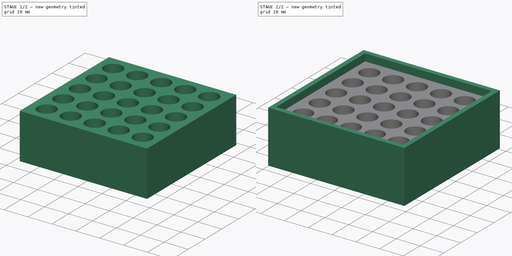
[diagram: build sequence overview — one tinted view per stage of 2, left to right]
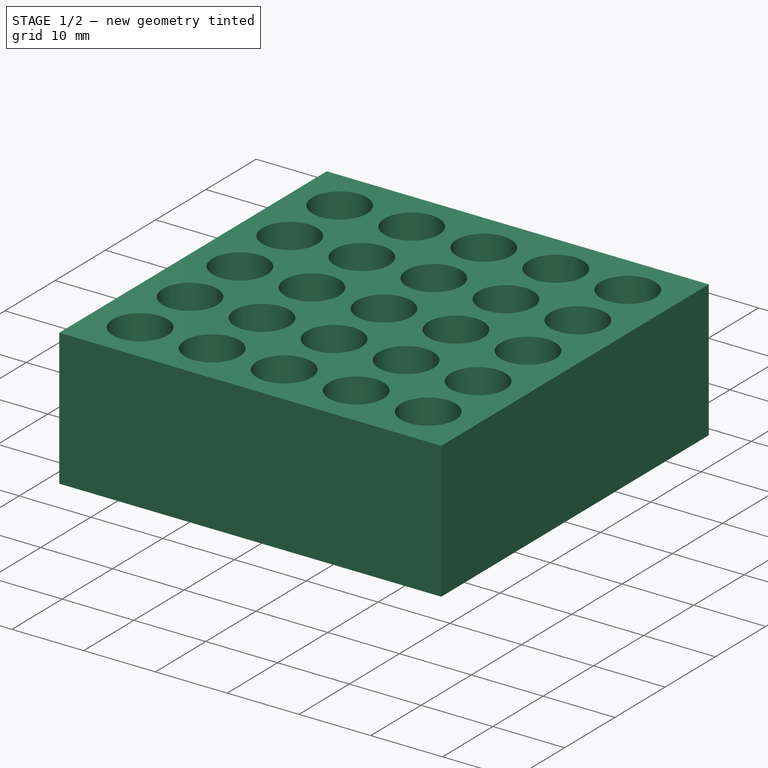
[diagram: stage 1 of 2 — iso view after this stage's code; geometry added in this stage tinted green]
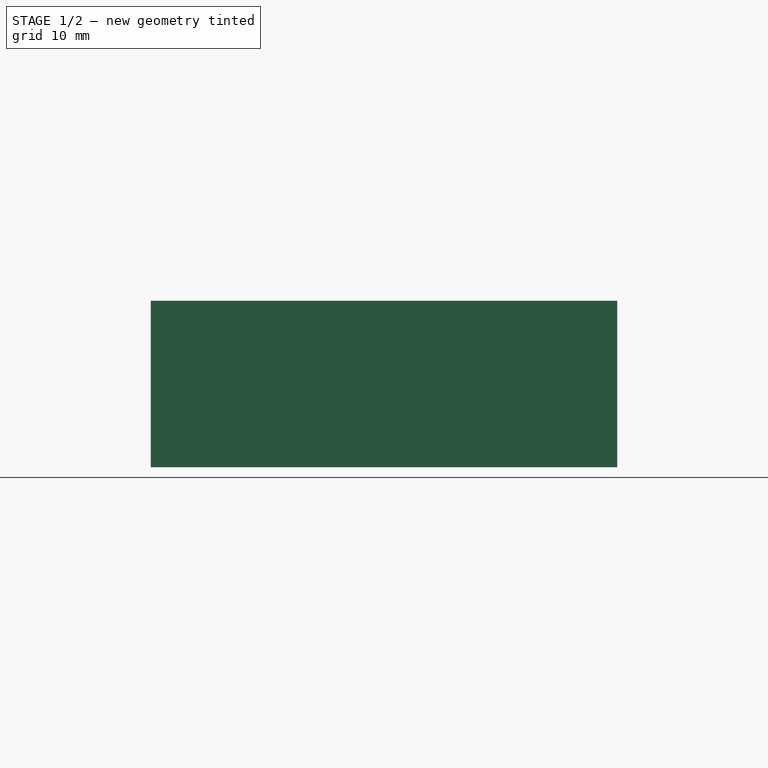
[diagram: stage 1 of 2 — front view after this stage's code; geometry added in this stage tinted green]
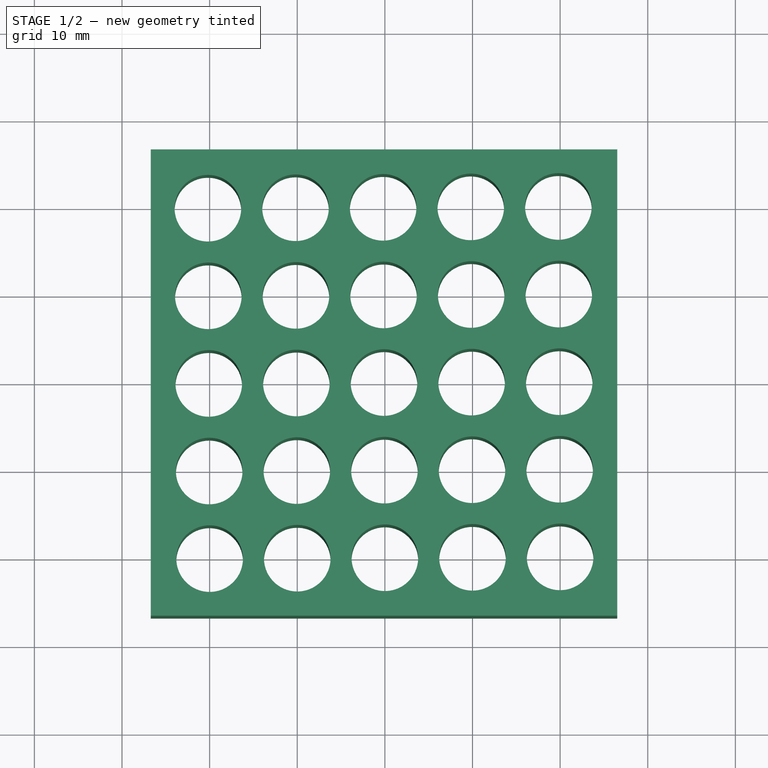
[diagram: stage 1 of 2 — top view after this stage's code; geometry added in this stage tinted green]
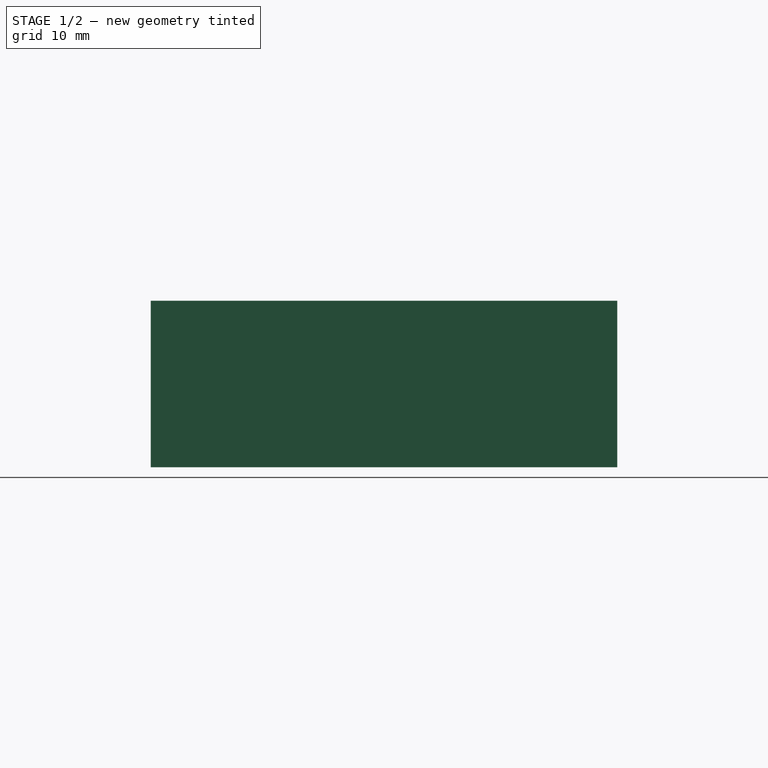
[diagram: stage 1 of 2 — right view after this stage's code; geometry added in this stage tinted green]
FCSTD DOCUMENT  (FreeCAD 0.20R29603 (Git))
Label: pill capsule filler base
License: All rights reserved
LicenseURL: http://en.wikipedia.org/wiki/All_rights_reserved
objects: Sketcher::SketchObject×3, PartDesign::Pad×2, PartDesign::Pocket×1, PartDesign::Body×1
note: 10 computed .brp shape members not serialized (recipe doc carries the construction recipe); baked Part::Feature solids carry a one-line shape summary decoded from their .brp

FEATURE [Sketcher::SketchObject] Sketch
  FullyConstrained = false
  MapMode = 5
  Support = -> [XY_Plane]
  sketch-geometry (5):
    g0: LineSegment StartX=-46.7159 StartY=46.5167 StartZ=0 EndX=-46.7159 EndY=-6.71642 EndZ=0
    g1: LineSegment StartX=-46.7159 StartY=-6.71642 StartZ=0 EndX=6.51716 EndY=-6.71642 EndZ=0
    g2: LineSegment StartX=6.51716 StartY=-6.71642 StartZ=0 EndX=6.51716 EndY=46.5167 EndZ=0
    g3: LineSegment StartX=6.51716 StartY=46.5167 StartZ=0 EndX=-46.7159 EndY=46.5167 EndZ=0
    g4: GeomPoint X=-20.0994 Y=19.9001 Z=0
  constraints (10):
    c: Coincident(g0,g1)
    c: Coincident(g1,g2)
    c: Coincident(g2,g3)
    c: Coincident(g3,g0)
    c: Horizontal(g1)
    c: Horizontal(g3)
    c: Vertical(g0)
    c: Vertical(g2)
    c: Symmetric(g1,g0,g4)
    c: Equal(g2,g3)
FEATURE [PartDesign::Pad] Pad
  Direction = (0,0,1)
  Length = 19
  Length2 = 10
  Profile = -> Sketch
  ReferenceAxis = -> Sketch [N_Axis]
  Type = 0
FEATURE [Sketcher::SketchObject] Sketch001
  FullyConstrained = true
  MapMode = 2
  Placement = pos=(0,0,2) rot=(0,0,1;0rad)
  Support = -> [Sketch001]
  sketch-geometry (49):
    g0: Circle CenterX=0 CenterY=0 CenterZ=0 NormalX=0 NormalY=0 NormalZ=1 AngleXU=0 Radius=3.8
    g1: Circle CenterX=-9.99988 CenterY=-0.049815 CenterZ=0 NormalX=0 NormalY=0 NormalZ=1 AngleXU=0 Radius=3.8
    g2: LineSegment StartX=0 StartY=0 StartZ=0 EndX=-9.99988 EndY=-0.049815 EndZ=0
    g3: Circle CenterX=-19.9998 CenterY=-0.09963 CenterZ=0 NormalX=0 NormalY=0 NormalZ=1 AngleXU=0 Radius=3.8
    g4: LineSegment StartX=-9.99988 StartY=-0.049815 StartZ=0 EndX=-19.9998 EndY=-0.09963 EndZ=0
    g5: Circle CenterX=-29.9996 CenterY=-0.149445 CenterZ=0 NormalX=0 NormalY=0 NormalZ=1 AngleXU=0 Radius=3.8
    g6: LineSegment StartX=-19.9998 StartY=-0.09963 StartZ=0 EndX=-29.9996 EndY=-0.149445 EndZ=0
    g7: Circle CenterX=-39.9995 CenterY=-0.19926 CenterZ=0 NormalX=0 NormalY=0 NormalZ=1 AngleXU=0 Radius=3.8
    g8: LineSegment StartX=-29.9996 StartY=-0.149445 StartZ=0 EndX=-39.9995 EndY=-0.19926 EndZ=0
    g9: Circle CenterX=-0.049815 CenterY=9.99988 CenterZ=0 NormalX=0 NormalY=0 NormalZ=1 AngleXU=0 Radius=3.8
    g10: LineSegment StartX=0 StartY=0 StartZ=0 EndX=-0.049815 EndY=9.99988 EndZ=0
    g11: Circle CenterX=-10.0497 CenterY=9.95006 CenterZ=0 NormalX=0 NormalY=0 NormalZ=1 AngleXU=0 Radius=3.8
    g12: LineSegment StartX=-0.049815 StartY=9.99988 StartZ=0 EndX=-10.0497 EndY=9.95006 EndZ=0
    g13: Circle CenterX=-20.0496 CenterY=9.90025 CenterZ=0 NormalX=0 NormalY=0 NormalZ=1 AngleXU=0 Radius=3.8
    g14: LineSegment StartX=-10.0497 StartY=9.95006 StartZ=0 EndX=-20.0496 EndY=9.90025 EndZ=0
    g15: Circle CenterX=-30.0494 CenterY=9.85043 CenterZ=0 NormalX=0 NormalY=0 NormalZ=1 AngleXU=0 Radius=3.8
    g16: LineSegment StartX=-20.0496 StartY=9.90025 StartZ=0 EndX=-30.0494 EndY=9.85043 EndZ=0
    g17: Circle CenterX=-40.0493 CenterY=9.80062 CenterZ=0 NormalX=0 NormalY=0 NormalZ=1 AngleXU=0 Radius=3.8
    g18: LineSegment StartX=-30.0494 StartY=9.85043 StartZ=0 EndX=-40.0493 EndY=9.80062 EndZ=0
    g19: Circle CenterX=-0.09963 CenterY=19.9998 CenterZ=0 NormalX=0 NormalY=0 NormalZ=1 AngleXU=0 Radius=3.8
    g20: LineSegment StartX=-0.049815 StartY=9.99988 StartZ=0 EndX=-0.09963 EndY=19.9998 EndZ=0
    g21: Circle CenterX=-10.0995 CenterY=19.9499 CenterZ=0 NormalX=0 NormalY=0 NormalZ=1 AngleXU=0 Radius=3.8
    g22: LineSegment StartX=-0.09963 StartY=19.9998 StartZ=0 EndX=-10.0995 EndY=19.9499 EndZ=0
    g23: Circle CenterX=-20.0994 CenterY=19.9001 CenterZ=0 NormalX=0 NormalY=0 NormalZ=1 AngleXU=0 Radius=3.8
    g24: LineSegment StartX=-10.0995 StartY=19.9499 StartZ=0 EndX=-20.0994 EndY=19.9001 EndZ=0
    g25: Circle CenterX=-30.0993 CenterY=19.8503 CenterZ=0 NormalX=0 NormalY=0 NormalZ=1 AngleXU=0 Radius=3.8
    g26: LineSegment StartX=-20.0994 StartY=19.9001 StartZ=0 EndX=-30.0993 EndY=19.8503 EndZ=0
    g27: Circle CenterX=-40.0991 CenterY=19.8005 CenterZ=0 NormalX=0 NormalY=0 NormalZ=1 AngleXU=0 Radius=3.8
    g28: LineSegment StartX=-30.0993 StartY=19.8503 StartZ=0 EndX=-40.0991 EndY=19.8005 EndZ=0
    g29: Circle CenterX=-0.149445 CenterY=29.9996 CenterZ=0 NormalX=0 NormalY=0 NormalZ=1 AngleXU=0 Radius=3.8
    g30: LineSegment StartX=-0.09963 StartY=19.9998 StartZ=0 EndX=-0.149445 EndY=29.9996 EndZ=0
    g31: Circle CenterX=-10.1493 CenterY=29.9498 CenterZ=0 NormalX=0 NormalY=0 NormalZ=1 AngleXU=0 Radius=3.8
    g32: LineSegment StartX=-0.149445 StartY=29.9996 StartZ=0 EndX=-10.1493 EndY=29.9498 EndZ=0
    g33: Circle CenterX=-20.1492 CenterY=29.9 CenterZ=0 NormalX=0 NormalY=0 NormalZ=1 AngleXU=0 Radius=3.8
    g34: LineSegment StartX=-10.1493 StartY=29.9498 StartZ=0 EndX=-20.1492 EndY=29.9 EndZ=0
    g35: Circle CenterX=-30.1491 CenterY=29.8502 CenterZ=0 NormalX=0 NormalY=0 NormalZ=1 AngleXU=0 Radius=3.8
    g36: LineSegment StartX=-20.1492 StartY=29.9 StartZ=0 EndX=-30.1491 EndY=29.8502 EndZ=0
    g37: Circle CenterX=-40.1489 CenterY=29.8004 CenterZ=0 NormalX=0 NormalY=0 NormalZ=1 AngleXU=0 Radius=3.8
    g38: LineSegment StartX=-30.1491 StartY=29.8502 StartZ=0 EndX=-40.1489 EndY=29.8004 EndZ=0
    g39: Circle CenterX=-0.19926 CenterY=39.9995 CenterZ=0 NormalX=0 NormalY=0 NormalZ=1 AngleXU=0 Radius=3.8
    g40: LineSegment StartX=-0.149445 StartY=29.9996 StartZ=0 EndX=-0.19926 EndY=39.9995 EndZ=0
    g41: Circle CenterX=-10.1991 CenterY=39.9497 CenterZ=0 NormalX=0 NormalY=0 NormalZ=1 AngleXU=0 Radius=3.8
    g42: LineSegment StartX=-0.19926 StartY=39.9995 StartZ=0 EndX=-10.1991 EndY=39.9497 EndZ=0
    g43: Circle CenterX=-20.199 CenterY=39.8999 CenterZ=0 NormalX=0 NormalY=0 NormalZ=1 AngleXU=0 Radius=3.8
    g44: LineSegment StartX=-10.1991 StartY=39.9497 StartZ=0 EndX=-20.199 EndY=39.8999 EndZ=0
    g45: Circle CenterX=-30.1989 CenterY=39.8501 CenterZ=0 NormalX=0 NormalY=0 NormalZ=1 AngleXU=0 Radius=3.8
    g46: LineSegment StartX=-20.199 StartY=39.8999 StartZ=0 EndX=-30.1989 EndY=39.8501 EndZ=0
    g47: Circle CenterX=-40.1988 CenterY=39.8002 CenterZ=0 NormalX=0 NormalY=0 NormalZ=1 AngleXU=0 Radius=3.8
    g48: LineSegment StartX=-30.1989 StartY=39.8501 StartZ=0 EndX=-40.1988 EndY=39.8002 EndZ=0
  constraints (122):
    c: Diameter(g0) = 7.6
    c: Coincident(g0,g-1)
    c: Diameter(g1) = 7.6
    c: Coincident(g0,g2)
    c: Coincident(g1,g2)
    c: Distance(g2) = 10
    c: Angle(g2) = -3.13661
    c: Diameter(g3) = 7.6
    c: Coincident(g1,g4)
    c: Coincident(g3,g4)
    c: Equal(g2,g4)
    c: Parallel(g4,g2)
    c: Diameter(g5) = 7.6
    c: Coincident(g3,g6)
    c: Coincident(g5,g6)
    c: Equal(g2,g6)
    c: Parallel(g6,g2)
    c: Diameter(g7) = 7.6
    c: Coincident(g5,g8)
    c: Coincident(g7,g8)
    c: Equal(g2,g8)
    c: Parallel(g8,g2)
    c: Diameter(g9) = 7.6
    c: Coincident(g0,g10)
    c: Coincident(g9,g10)
    c: Equal(g10,g2)
    c: Perpendicular(g10,g2)
    c: Diameter(g11) = 7.6
    c: Coincident(g9,g12)
    c: Coincident(g11,g12)
    c: Equal(g2,g12)
    c: Parallel(g12,g2)
    c: Diameter(g13) = 7.6
    c: Coincident(g11,g14)
    c: Coincident(g13,g14)
    c: Equal(g2,g14)
    c: Parallel(g14,g2)
    c: Diameter(g15) = 7.6
    c: Coincident(g13,g16)
    c: Coincident(g15,g16)
    c: Equal(g2,g16)
    c: Parallel(g16,g2)
    c: Diameter(g17) = 7.6
    c: Coincident(g15,g18)
    c: Coincident(g17,g18)
    c: Equal(g2,g18)
    c: Parallel(g18,g2)
    c: Diameter(g19) = 7.6
    c: Coincident(g9,g20)
    c: Coincident(g19,g20)
    c: Equal(g10,g20)
    c: Perpendicular(g20,g2)
    c: Diameter(g21) = 7.6
    c: Coincident(g19,g22)
    c: Coincident(g21,g22)
    c: Equal(g2,g22)
    c: Parallel(g22,g2)
    c: Diameter(g23) = 7.6
    c: Coincident(g21,g24)
    c: Coincident(g23,g24)
    c: Equal(g2,g24)
    c: Parallel(g24,g2)
    c: Diameter(g25) = 7.6
    c: Coincident(g23,g26)
    c: Coincident(g25,g26)
    c: Equal(g2,g26)
    c: Parallel(g26,g2)
    c: Diameter(g27) = 7.6
    c: Coincident(g25,g28)
    c: Coincident(g27,g28)
    c: Equal(g2,g28)
    c: Parallel(g28,g2)
    c: Diameter(g29) = 7.6
    c: Coincident(g19,g30)
    c: Coincident(g29,g30)
    c: Equal(g10,g30)
    c: Perpendicular(g30,g2)
    c: Diameter(g31) = 7.6
    c: Coincident(g29,g32)
    c: Coincident(g31,g32)
    c: Equal(g2,g32)
    c: Parallel(g32,g2)
    c: Diameter(g33) = 7.6
    c: Coincident(g31,g34)
    c: Coincident(g33,g34)
    c: Equal(g2,g34)
    c: Parallel(g34,g2)
    c: Diameter(g35) = 7.6
    c: Coincident(g33,g36)
    c: Coincident(g35,g36)
    c: Equal(g2,g36)
    c: Parallel(g36,g2)
    c: Diameter(g37) = 7.6
    c: Coincident(g35,g38)
    c: Coincident(g37,g38)
    c: Equal(g2,g38)
    c: Parallel(g38,g2)
    c: Diameter(g39) = 7.6
    c: Coincident(g29,g40)
    c: Coincident(g39,g40)
    c: Equal(g10,g40)
    c: Perpendicular(g40,g2)
    c: Diameter(g41) = 7.6
    c: Coincident(g39,g42)
    c: Coincident(g41,g42)
    c: Equal(g2,g42)
    c: Parallel(g42,g2)
    c: Diameter(g43) = 7.6
    c: Coincident(g41,g44)
    c: Coincident(g43,g44)
    c: Equal(g2,g44)
    c: Parallel(g44,g2)
    c: Diameter(g45) = 7.6
    c: Coincident(g43,g46)
    c: Coincident(g45,g46)
    c: Equal(g2,g46)
    c: Parallel(g46,g2)
    c: Diameter(g47) = 7.6
    c: Coincident(g45,g48)
    c: Coincident(g47,g48)
    c: Equal(g2,g48)
    c: Parallel(g48,g2)
FEATURE [PartDesign::Pocket] Pocket
  BaseFeature = -> Pad
  Direction = (0,0,-1)
  Length = 5
  Length2 = 5
  Midplane = true
  Profile = -> Sketch001
  ReferenceAxis = -> Sketch001 [N_Axis]
  Type = 1
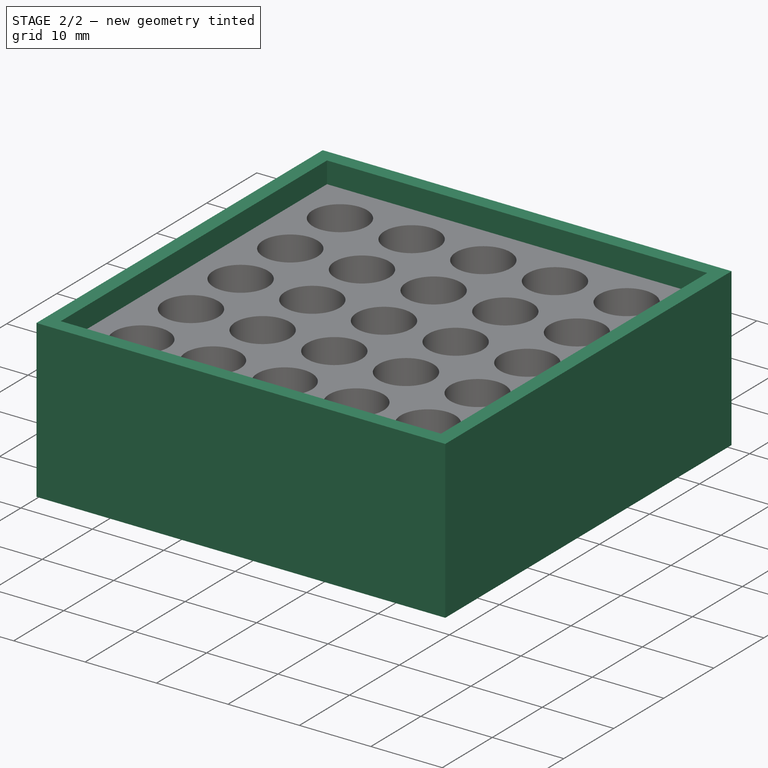
[diagram: stage 2 of 2 — iso view after this stage's code; geometry added in this stage tinted green]
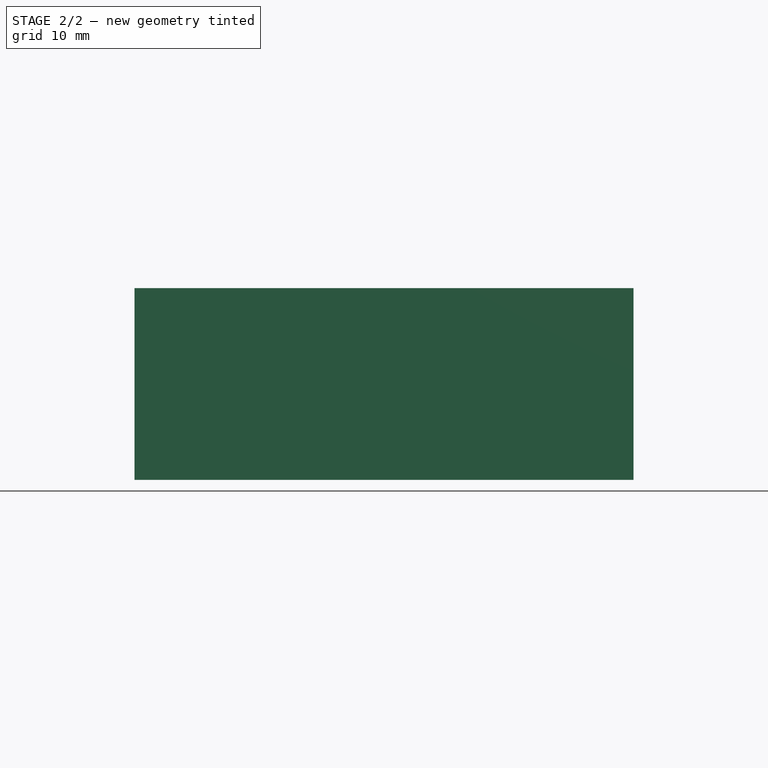
[diagram: stage 2 of 2 — front view after this stage's code; geometry added in this stage tinted green]
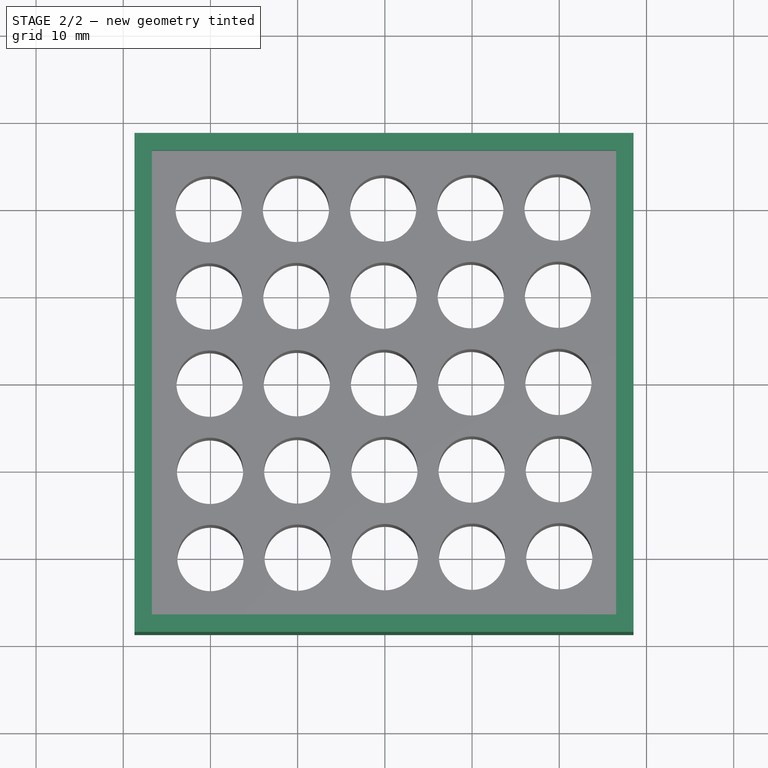
[diagram: stage 2 of 2 — top view after this stage's code; geometry added in this stage tinted green]
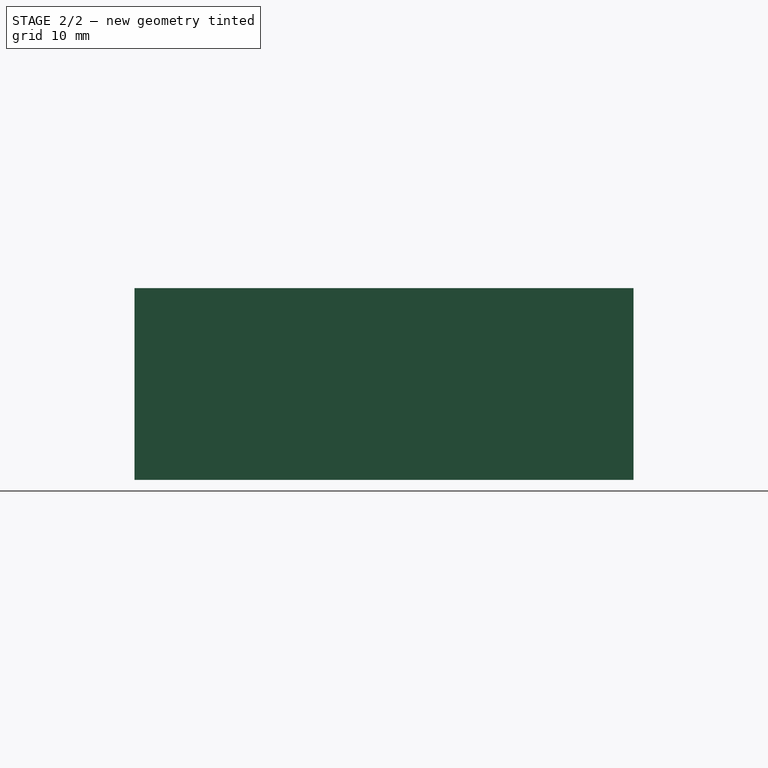
[diagram: stage 2 of 2 — right view after this stage's code; geometry added in this stage tinted green]
FEATURE [Sketcher::SketchObject] Sketch002
  ExternalGeometry = -> [Pocket]
  FullyConstrained = true
  MapMode = 5
  Support = -> [XY_Plane]
  sketch-geometry (8):
    g0: LineSegment StartX=-46.7159 StartY=46.5167 StartZ=0 EndX=6.51716 EndY=46.5167 EndZ=0
    g1: LineSegment StartX=6.51716 StartY=46.5167 StartZ=0 EndX=6.51716 EndY=-6.71642 EndZ=0
    g2: LineSegment StartX=6.51716 StartY=-6.71642 StartZ=0 EndX=-46.7159 EndY=-6.71642 EndZ=0
    g3: LineSegment StartX=-46.7159 StartY=-6.71642 StartZ=0 EndX=-46.7159 EndY=46.5167 EndZ=0
    g4: LineSegment StartX=-48.7159 StartY=48.5167 StartZ=0 EndX=8.51716 EndY=48.5167 EndZ=0
    g5: LineSegment StartX=8.51716 StartY=48.5167 StartZ=0 EndX=8.51716 EndY=-8.71642 EndZ=0
    g6: LineSegment StartX=8.51716 StartY=-8.71642 StartZ=0 EndX=-48.7159 EndY=-8.71642 EndZ=0
    g7: LineSegment StartX=-48.7159 StartY=-8.71642 StartZ=0 EndX=-48.7159 EndY=48.5167 EndZ=0
  constraints (22):
    c: Coincident(g0,g1)
    c: Coincident(g1,g2)
    c: Coincident(g2,g3)
    c: Coincident(g3,g0)
    c: Horizontal(g0)
    c: Horizontal(g2)
    c: Vertical(g1)
    c: Vertical(g3)
    c: Coincident(g0,g-4)
    c: Coincident(g1,g-6)
    c: Coincident(g4,g5)
    c: Coincident(g5,g6)
    c: Coincident(g6,g7)
    c: Coincident(g7,g4)
    c: Horizontal(g4)
    c: Horizontal(g6)
    c: Vertical(g5)
    c: Vertical(g7)
    c: DistanceX(g4,g0) = 2
    c: DistanceY(g0,g4) = 2
    c: DistanceX(g1,g5) = 2
    c: DistanceY(g5,g1) = 2
FEATURE [PartDesign::Pad] Pad001
  BaseFeature = -> Pocket
  Direction = (0,0,1)
  Length = 22
  Length2 = 10
  Profile = -> Sketch002
  ReferenceAxis = -> Sketch002 [N_Axis]
  Type = 0
FEATURE [PartDesign::Body] Body
  Group = -> [Sketch,Pad,Sketch001,Pocket,Sketch002,Pad001]
  Origin = -> Origin
  Tip = -> Pad001
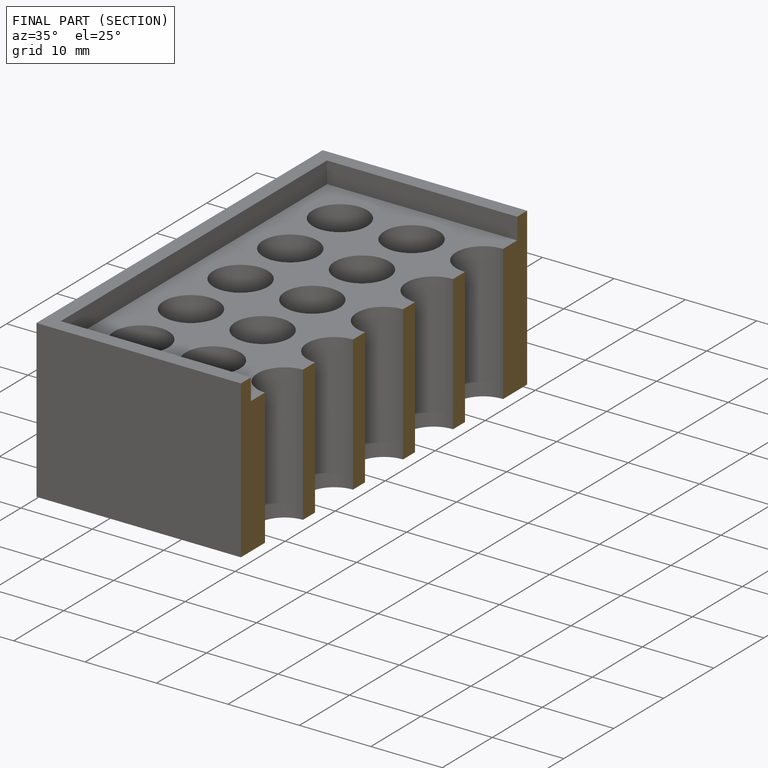
[diagram: finished part — half-section view (interior)]
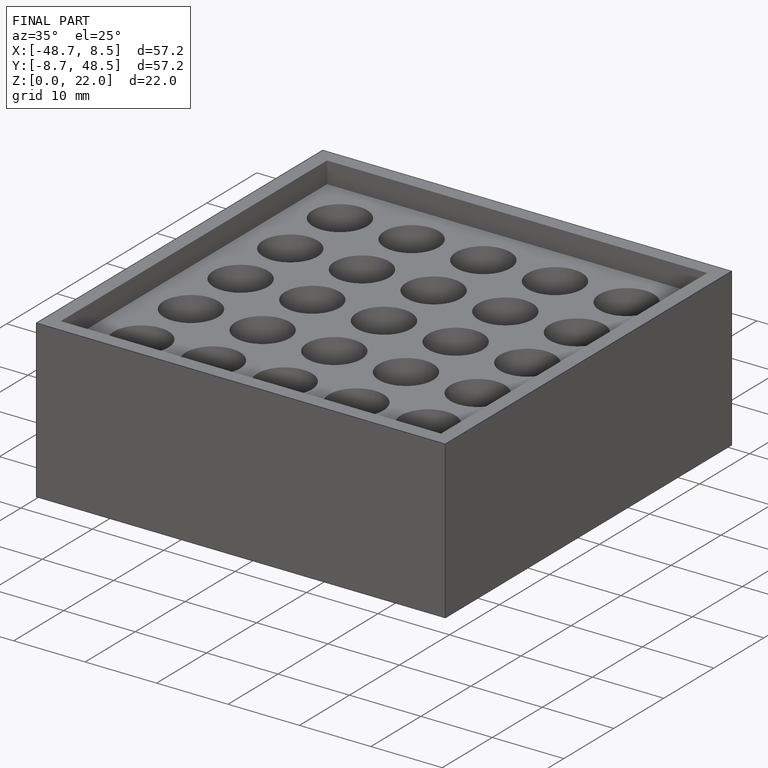
[diagram: finished part — iso view with bounding-box wireframe]
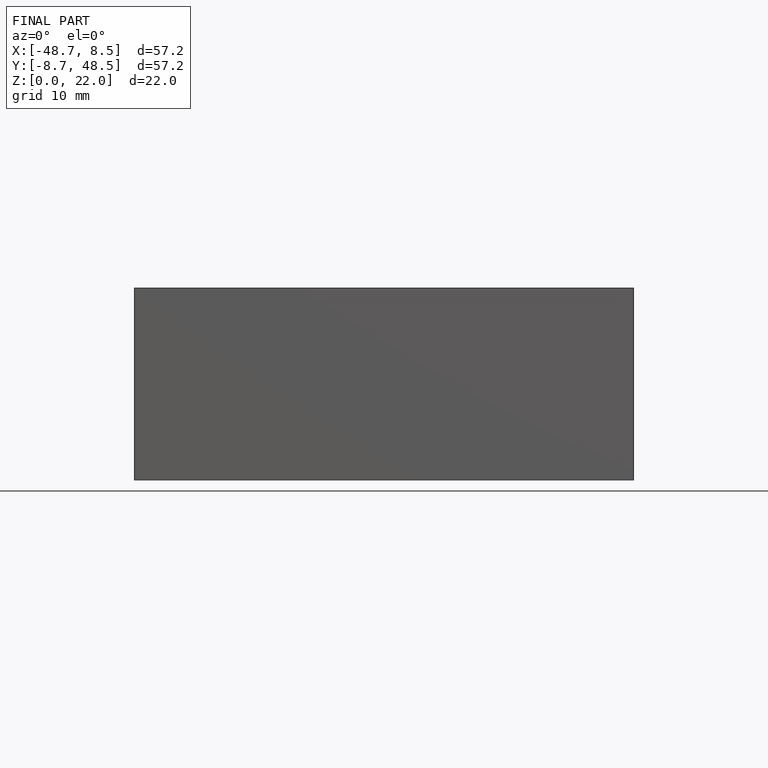
[diagram: finished part — front view with bounding-box wireframe]
